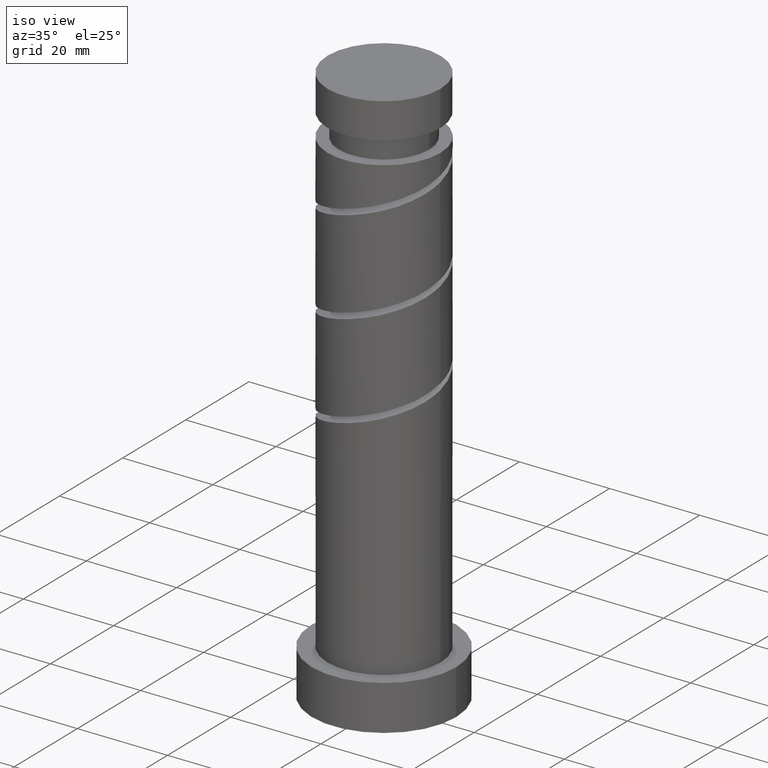
[diagram: clean part render]
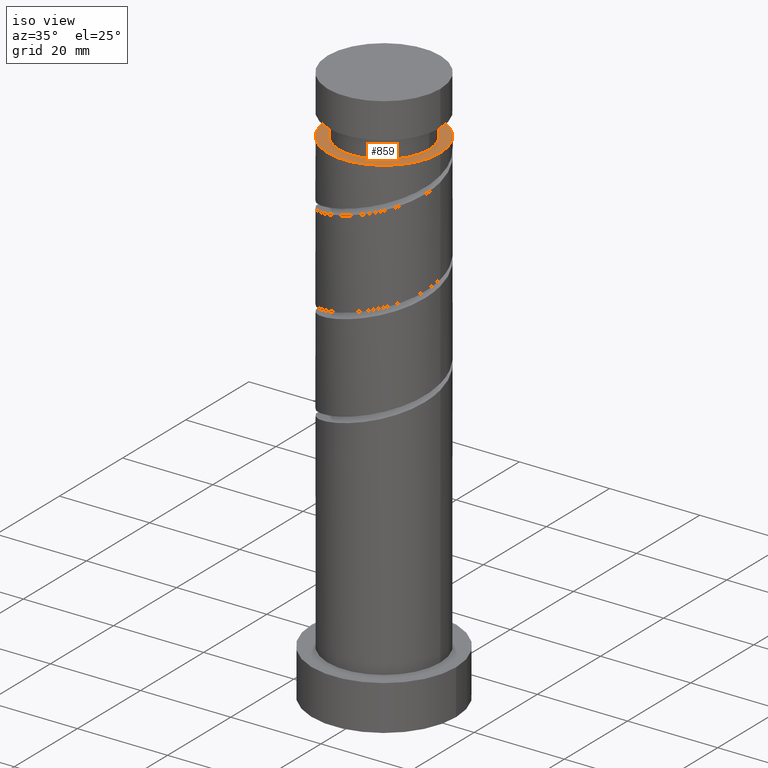
[diagram: same view with one face highlighted and labeled with its STEP entity id]
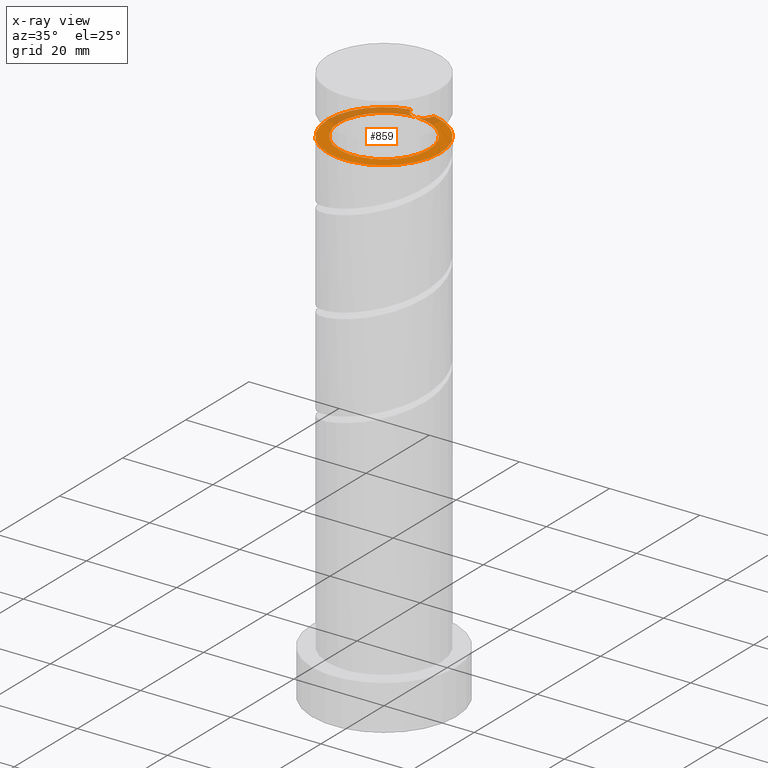
[diagram: x-ray of the same camera — body ghosted, the highlighted face saturated]
A machine part, iso view. The second image highlights one B-rep face of the part: STEP entity #859.
The next image is the same camera in x-ray: the body ghosted, the highlighted face saturated — about 29% of this face is hidden behind the body in this view.
In plain terms, the highlighted planar face has unit normal (-0, 0, -1).
Its self-contained STEP definition (entity closure, byte-faithful):
#7 = DIRECTION ( 'NONE',  ( -1.000000000000000000, 0.000000000000000000, 0.000000000000000000 ) ) ;
#30 = CIRCLE ( 'NONE', #922, 9.999999999999998224 ) ;
#31 = AXIS2_PLACEMENT_3D ( 'NONE', #343, #1548, #1171 ) ;
#64 = ORIENTED_EDGE ( 'NONE', *, *, #1403, .F. ) ;
#66 = DIRECTION ( 'NONE',  ( -0.000000000000000000, 0.000000000000000000, -1.000000000000000000 ) ) ;
#67 = EDGE_CURVE ( 'NONE', #1133, #79, #30, .T. ) ;
#79 = VERTEX_POINT ( 'NONE', #988 ) ;
#87 = ORIENTED_EDGE ( 'NONE', *, *, #509, .F. ) ;
#98 = CARTESIAN_POINT ( 'NONE',  ( 0.000000000000000000, 0.000000000000000000, 112.1650261409417766 ) ) ;
#104 = DIRECTION ( 'NONE',  ( 0.000000000000000000, 0.000000000000000000, 1.000000000000000000 ) ) ;
#130 = EDGE_CURVE ( 'NONE', #1158, #1133, #235, .T. ) ;
#165 = CARTESIAN_POINT ( 'NONE',  ( 0.000000000000000000, 0.000000000000000000, 112.1650261409417766 ) ) ;
#188 = ORIENTED_EDGE ( 'NONE', *, *, #796, .F. ) ;
#205 = DIRECTION ( 'NONE',  ( -0.000000000000000000, -0.000000000000000000, -1.000000000000000000 ) ) ;
#213 = CIRCLE ( 'NONE', #1556, 12.50000000000000000 ) ;
#217 = CARTESIAN_POINT ( 'NONE',  ( 2.487468592766555631, 12.24999999999999822, 112.1650261409418192 ) ) ;
#223 = DIRECTION ( 'NONE',  ( -1.000000000000000000, 0.000000000000000000, 0.000000000000000000 ) ) ;
#233 = ORIENTED_EDGE ( 'NONE', *, *, #130, .T. ) ;
#235 = CIRCLE ( 'NONE', #695, 9.999999999999998224 ) ;
#307 = PLANE ( 'NONE',  #1425 ) ;
#328 = VERTEX_POINT ( 'NONE', #217 ) ;
#330 = CARTESIAN_POINT ( 'NONE',  ( -2.487468592766544528, 12.24999999999995381, 112.1650261409417766 ) ) ;
#343 = CARTESIAN_POINT ( 'NONE',  ( 0.000000000000000000, 0.000000000000000000, 112.1650261409417766 ) ) ;
#405 = EDGE_CURVE ( 'NONE', #795, #422, #1097, .T. ) ;
#422 = VERTEX_POINT ( 'NONE', #1315 ) ;
#456 = DIRECTION ( 'NONE',  ( -1.000000000000000000, 0.000000000000000000, 0.000000000000000000 ) ) ;
#465 = AXIS2_PLACEMENT_3D ( 'NONE', #1063, #1535, #456 ) ;
#466 = EDGE_LOOP ( 'NONE', ( #87, #64, #1290, #684, #188, #826, #651, #233 ) ) ;
#478 = CARTESIAN_POINT ( 'NONE',  ( 12.50000000000000000, 1.530808498934191521E-15, 112.1650261409417766 ) ) ;
#491 = EDGE_CURVE ( 'NONE', #79, #1158, #1124, .T. ) ;
#509 = EDGE_CURVE ( 'NONE', #1070, #1133, #1501, .T. ) ;
#510 = CARTESIAN_POINT ( 'NONE',  ( 0.000000000000000000, 0.000000000000000000, 112.1650261409417766 ) ) ;
#556 = DIRECTION ( 'NONE',  ( -0.000000000000000000, -0.000000000000000000, -1.000000000000000000 ) ) ;
#591 = CARTESIAN_POINT ( 'NONE',  ( 2.428612866367529538E-15, 9.999999999999998224, 112.1650261409417766 ) ) ;
#651 = ORIENTED_EDGE ( 'NONE', *, *, #491, .T. ) ;
#654 = DIRECTION ( 'NONE',  ( -0.000000000000000000, -0.000000000000000000, -1.000000000000000000 ) ) ;
#684 = ORIENTED_EDGE ( 'NONE', *, *, #1120, .F. ) ;
#695 = AXIS2_PLACEMENT_3D ( 'NONE', #510, #1340, #7 ) ;
#729 = CARTESIAN_POINT ( 'NONE',  ( -9.999999999999998224, 0.000000000000000000, 112.1650261409417766 ) ) ;
#795 = VERTEX_POINT ( 'NONE', #478 ) ;
#796 = EDGE_CURVE ( 'NONE', #1133, #328, #1022, .T. ) ;
#822 = AXIS2_PLACEMENT_3D ( 'NONE', #1408, #104, #223 ) ;
#826 = ORIENTED_EDGE ( 'NONE', *, *, #67, .T. ) ;
#846 = AXIS2_PLACEMENT_3D ( 'NONE', #98, #556, #1436 ) ;
#859 = ADVANCED_FACE ( 'NONE', ( #1246 ), #307, .F. ) ;
#922 = AXIS2_PLACEMENT_3D ( 'NONE', #1065, #205, #1177 ) ;
#970 = AXIS2_PLACEMENT_3D ( 'NONE', #1088, #1572, #1222 ) ;
#988 = CARTESIAN_POINT ( 'NONE',  ( 9.999999999999998224, 1.224646799147353059E-15, 112.1650261409417766 ) ) ;
#1022 = CIRCLE ( 'NONE', #970, 2.500000000000002220 ) ;
#1063 = CARTESIAN_POINT ( 'NONE',  ( 0.000000000000000000, 0.000000000000000000, 112.1650261409417766 ) ) ;
#1065 = CARTESIAN_POINT ( 'NONE',  ( 0.000000000000000000, 0.000000000000000000, 112.1650261409417766 ) ) ;
#1070 = VERTEX_POINT ( 'NONE', #330 ) ;
#1071 = CIRCLE ( 'NONE', #31, 12.50000000000000000 ) ;
#1088 = CARTESIAN_POINT ( 'NONE',  ( 3.035766082959412415E-15, 12.50000000000000000, 112.1650261409417766 ) ) ;
#1097 = CIRCLE ( 'NONE', #846, 12.50000000000000000 ) ;
#1118 = CARTESIAN_POINT ( 'NONE',  ( 0.000000000000000000, 9.999999999999998224, 112.1650261409417766 ) ) ;
#1120 = EDGE_CURVE ( 'NONE', #328, #795, #1071, .T. ) ;
#1124 = CIRCLE ( 'NONE', #465, 9.999999999999998224 ) ;
#1127 = DIRECTION ( 'NONE',  ( -1.000000000000000000, 0.000000000000000000, 0.000000000000000000 ) ) ;
#1133 = VERTEX_POINT ( 'NONE', #591 ) ;
#1136 = DIRECTION ( 'NONE',  ( -1.000000000000000000, 0.000000000000000000, 0.000000000000000000 ) ) ;
#1158 = VERTEX_POINT ( 'NONE', #729 ) ;
#1171 = DIRECTION ( 'NONE',  ( -1.000000000000000000, 0.000000000000000000, 0.000000000000000000 ) ) ;
#1177 = DIRECTION ( 'NONE',  ( -1.000000000000000000, 0.000000000000000000, 0.000000000000000000 ) ) ;
#1222 = DIRECTION ( 'NONE',  ( -1.000000000000000000, 0.000000000000000000, 0.000000000000000000 ) ) ;
#1246 = FACE_OUTER_BOUND ( 'NONE', #466, .T. ) ;
#1290 = ORIENTED_EDGE ( 'NONE', *, *, #405, .F. ) ;
#1315 = CARTESIAN_POINT ( 'NONE',  ( -12.50000000000000000, 0.000000000000000000, 112.1650261409417766 ) ) ;
#1340 = DIRECTION ( 'NONE',  ( -0.000000000000000000, -0.000000000000000000, -1.000000000000000000 ) ) ;
#1403 = EDGE_CURVE ( 'NONE', #422, #1070, #213, .T. ) ;
#1408 = CARTESIAN_POINT ( 'NONE',  ( 3.035766082959412415E-15, 12.50000000000000000, 112.1650261409417766 ) ) ;
#1425 = AXIS2_PLACEMENT_3D ( 'NONE', #1118, #66, #1127 ) ;
#1436 = DIRECTION ( 'NONE',  ( -1.000000000000000000, 0.000000000000000000, 0.000000000000000000 ) ) ;
#1501 = CIRCLE ( 'NONE', #822, 2.500000000000002220 ) ;
#1535 = DIRECTION ( 'NONE',  ( -0.000000000000000000, -0.000000000000000000, -1.000000000000000000 ) ) ;
#1548 = DIRECTION ( 'NONE',  ( -0.000000000000000000, -0.000000000000000000, -1.000000000000000000 ) ) ;
#1556 = AXIS2_PLACEMENT_3D ( 'NONE', #165, #654, #1136 ) ;
#1572 = DIRECTION ( 'NONE',  ( 0.000000000000000000, 0.000000000000000000, 1.000000000000000000 ) ) ;